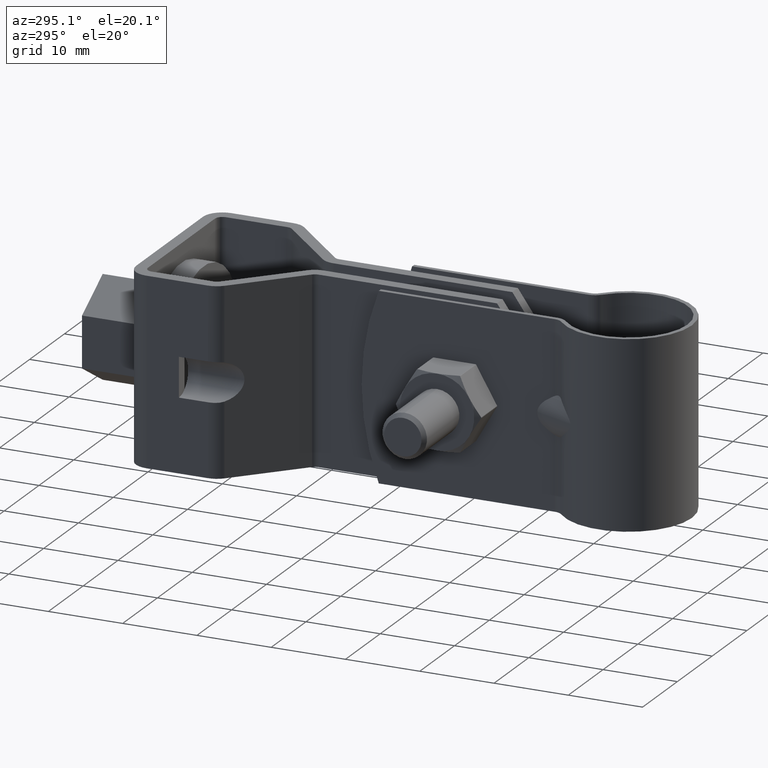
[diagram: clean part render]
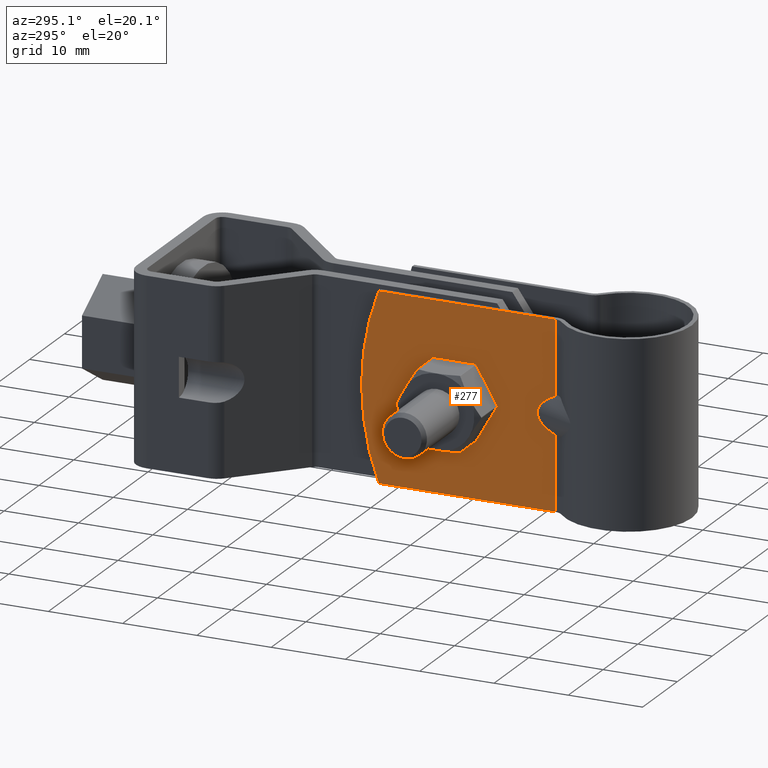
[diagram: same view with one face highlighted and labeled with its STEP entity id]
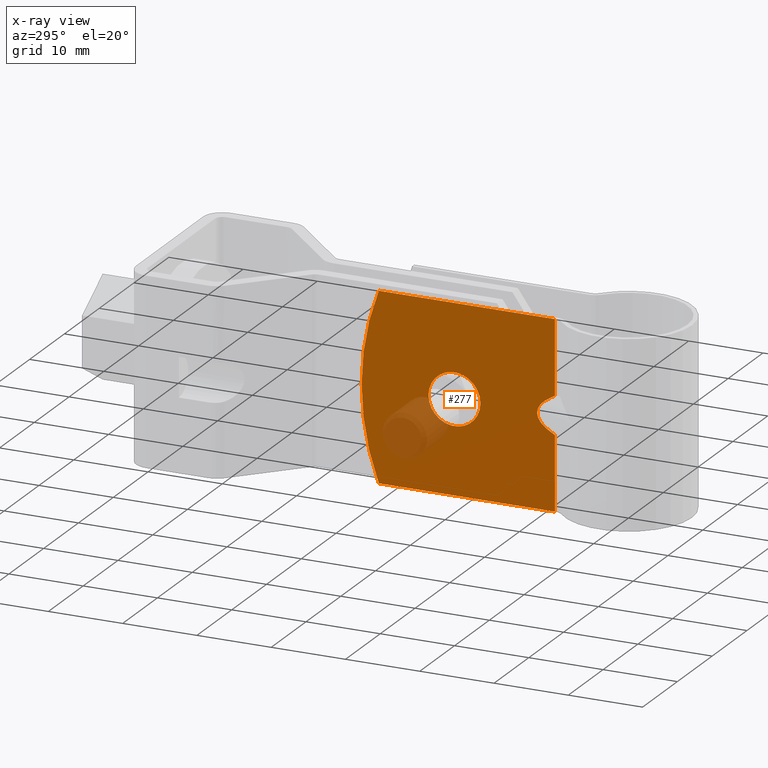
[diagram: x-ray of the same camera — body ghosted, the highlighted face saturated]
A machine part, auxiliary view. The second image highlights one B-rep face of the part: STEP entity #277.
The next image is the same camera in x-ray: the body ghosted, the highlighted face saturated — about 8% of this face is hidden behind the body in this view.
In plain terms, the highlighted planar face has unit normal (-1, 0, 0).
Its self-contained STEP definition (entity closure, byte-faithful):
#277 = ADVANCED_FACE( '', ( #403, #404 ), #405, .T. );
#403 = FACE_OUTER_BOUND( '', #667, .T. );
#404 = FACE_BOUND( '', #668, .T. );
#405 = PLANE( '', #669 );
#667 = EDGE_LOOP( '', ( #992, #993, #994, #995, #996, #997, #998, #999 ) );
#668 = EDGE_LOOP( '', ( #1000 ) );
#669 = AXIS2_PLACEMENT_3D( '', #1001, #1002, #1003 );
#992 = ORIENTED_EDGE( '', *, *, #1903, .F. );
#993 = ORIENTED_EDGE( '', *, *, #1898, .T. );
#994 = ORIENTED_EDGE( '', *, *, #1904, .F. );
#995 = ORIENTED_EDGE( '', *, *, #1905, .T. );
#996 = ORIENTED_EDGE( '', *, *, #1874, .T. );
#997 = ORIENTED_EDGE( '', *, *, #1902, .T. );
#998 = ORIENTED_EDGE( '', *, *, #1892, .F. );
#999 = ORIENTED_EDGE( '', *, *, #1906, .F. );
#1000 = ORIENTED_EDGE( '', *, *, #1894, .T. );
#1001 = CARTESIAN_POINT( '', ( -5.10000000000000, 33.5416817409593, -12.5000000000000 ) );
#1002 = DIRECTION( '', ( -1.00000000000000, 6.06692130572647E-017, 0.000000000000000 ) );
#1003 = DIRECTION( '', ( -6.06692130572647E-017, -1.00000000000000, 0.000000000000000 ) );
#1874 = EDGE_CURVE( '', #2223, #2221, #2224, .T. );
#1892 = EDGE_CURVE( '', #2255, #2257, #2258, .T. );
#1894 = EDGE_CURVE( '', #2260, #2260, #2261, .F. );
#1898 = EDGE_CURVE( '', #2264, #2266, #2268, .T. );
#1902 = EDGE_CURVE( '', #2221, #2257, #2274, .T. );
#1903 = EDGE_CURVE( '', #2264, #2275, #2276, .T. );
#1904 = EDGE_CURVE( '', #2277, #2266, #2278, .T. );
#1905 = EDGE_CURVE( '', #2277, #2223, #2279, .T. );
#1906 = EDGE_CURVE( '', #2275, #2255, #2280, .T. );
#2221 = VERTEX_POINT( '', #2729 );
#2223 = VERTEX_POINT( '', #2731 );
#2224 = LINE( '', #2732, #2733 );
#2255 = VERTEX_POINT( '', #2812 );
#2257 = VERTEX_POINT( '', #2815 );
#2258 = LINE( '', #2816, #2817 );
#2260 = VERTEX_POINT( '', #2819 );
#2261 = CIRCLE( '', #2820, 3.50000000000000 );
#2264 = VERTEX_POINT( '', #2823 );
#2266 = VERTEX_POINT( '', #2825 );
#2268 = LINE( '', #2827, #2828 );
#2274 = LINE( '', #2836, #2837 );
#2275 = VERTEX_POINT( '', #2838 );
#2276 = LINE( '', #2839, #2840 );
#2277 = VERTEX_POINT( '', #2841 );
#2278 = LINE( '', #2842, #2843 );
#2279 = CIRCLE( '', #2844, 35.0000000000000 );
#2280 = ELLIPSE( '', #2845, 10.6778686502160, 4.00000000000000 );
#2729 = CARTESIAN_POINT( '', ( -5.10000000000000, 7.52021276294762, -12.5000000000000 ) );
#2731 = CARTESIAN_POINT( '', ( -5.10000000000000, 31.2334238175143, -12.5000000000000 ) );
#2732 = CARTESIAN_POINT( '', ( -5.10000000000000, 33.5416817409593, -12.5000000000000 ) );
#2733 = VECTOR( '', #3559, 1000.00000000000 );
#2812 = CARTESIAN_POINT( '', ( -5.10000000000000, 7.97571819096280, -2.29430574540423 ) );
#2815 = CARTESIAN_POINT( '', ( -5.10000000000000, 7.52021276294762, -2.53799826135101 ) );
#2816 = CARTESIAN_POINT( '', ( -5.10000000000000, 23.6075772193304, 6.06863972408713 ) );
#2817 = VECTOR( '', #3591, 1000.00000000000 );
#2819 = CARTESIAN_POINT( '', ( -5.10000000000000, 17.5416817409593, -8.67361737988404E-016 ) );
#2820 = AXIS2_PLACEMENT_3D( '', #3595, #3596, #3597 );
#2823 = CARTESIAN_POINT( '', ( -5.10000000000000, 7.52021276294762, 2.53799826135086 ) );
#2825 = CARTESIAN_POINT( '', ( -5.10000000000000, 7.52021276294762, 12.5000000000000 ) );
#2827 = CARTESIAN_POINT( '', ( -5.10000000000000, 7.52021276294762, -12.5000000000000 ) );
#2828 = VECTOR( '', #3607, 1000.00000000000 );
#2836 = CARTESIAN_POINT( '', ( -5.10000000000000, 7.52021276294762, -12.5000000000000 ) );
#2837 = VECTOR( '', #3613, 1000.00000000000 );
#2838 = CARTESIAN_POINT( '', ( -5.10000000000000, 7.97571819096275, 2.29430574540413 ) );
#2839 = CARTESIAN_POINT( '', ( -5.10000000000000, 34.0061560350822, -11.6318134603989 ) );
#2840 = VECTOR( '', #3614, 1000.00000000000 );
#2841 = CARTESIAN_POINT( '', ( -5.10000000000000, 31.2334238175143, 12.5000000000000 ) );
#2842 = CARTESIAN_POINT( '', ( -5.10000000000000, 33.5416817409593, 12.5000000000000 ) );
#2843 = VECTOR( '', #3615, 1000.00000000000 );
#2844 = AXIS2_PLACEMENT_3D( '', #3616, #3617, #3618 );
#2845 = AXIS2_PLACEMENT_3D( '', #3619, #3620, #3621 );
#3559 = DIRECTION( '', ( -6.06692130572647E-017, -1.00000000000000, 0.000000000000000 ) );
#3591 = DIRECTION( '', ( -5.34947341736442E-017, -0.881744322662491, -0.471727622100366 ) );
#3595 = CARTESIAN_POINT( '', ( -5.10000000000000, 21.0416817409593, -8.67361737988404E-016 ) );
#3596 = DIRECTION( '', ( -1.00000000000000, 6.06692130572647E-017, 0.000000000000000 ) );
#3597 = DIRECTION( '', ( -6.06692130572647E-017, -1.00000000000000, 0.000000000000000 ) );
#3607 = DIRECTION( '', ( 0.000000000000000, 0.000000000000000, 1.00000000000000 ) );
#3613 = DIRECTION( '', ( 0.000000000000000, 0.000000000000000, 1.00000000000000 ) );
#3614 = DIRECTION( '', ( 5.34947341736442E-017, 0.881744322662491, -0.471727622100365 ) );
#3615 = DIRECTION( '', ( -6.06692130572647E-017, -1.00000000000000, 0.000000000000000 ) );
#3616 = CARTESIAN_POINT( '', ( -5.10000000000000, -1.45831825904072, -1.23312918035372E-031 ) );
#3617 = DIRECTION( '', ( -1.00000000000000, 6.06692130572647E-017, 0.000000000000000 ) );
#3618 = DIRECTION( '', ( -6.06692130572647E-017, -1.00000000000000, 0.000000000000000 ) );
#3619 = CARTESIAN_POINT( '', ( -5.10000000000000, -0.771079742511059, -6.08170809569013E-014 ) );
#3620 = DIRECTION( '', ( -1.00000000000000, 6.06692130572647E-017, 8.20211943874483E-048 ) );
#3621 = DIRECTION( '', ( 6.06692130572647E-017, 1.00000000000000, 9.87866635947528E-016 ) );